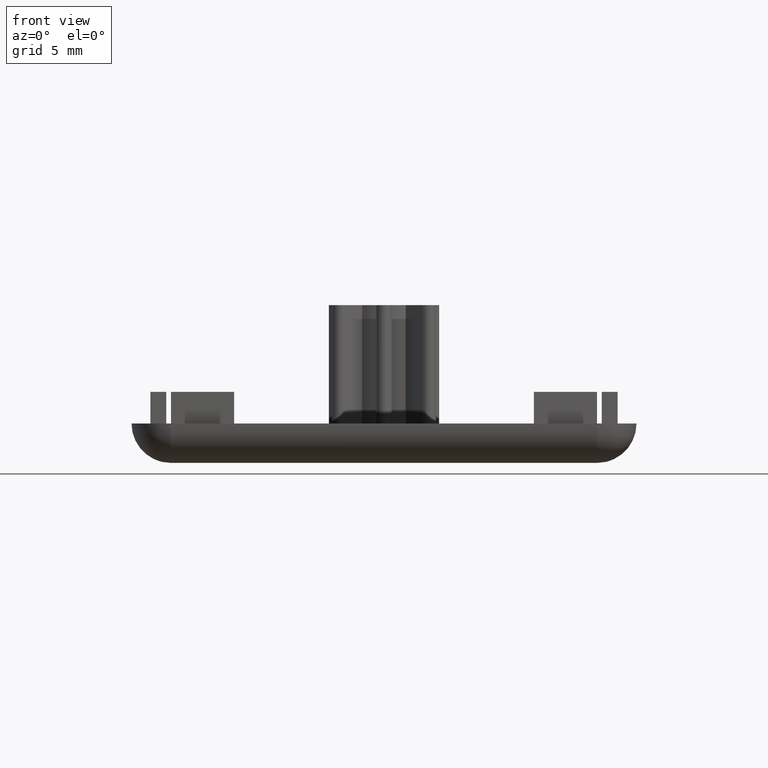
[diagram: clean part render]
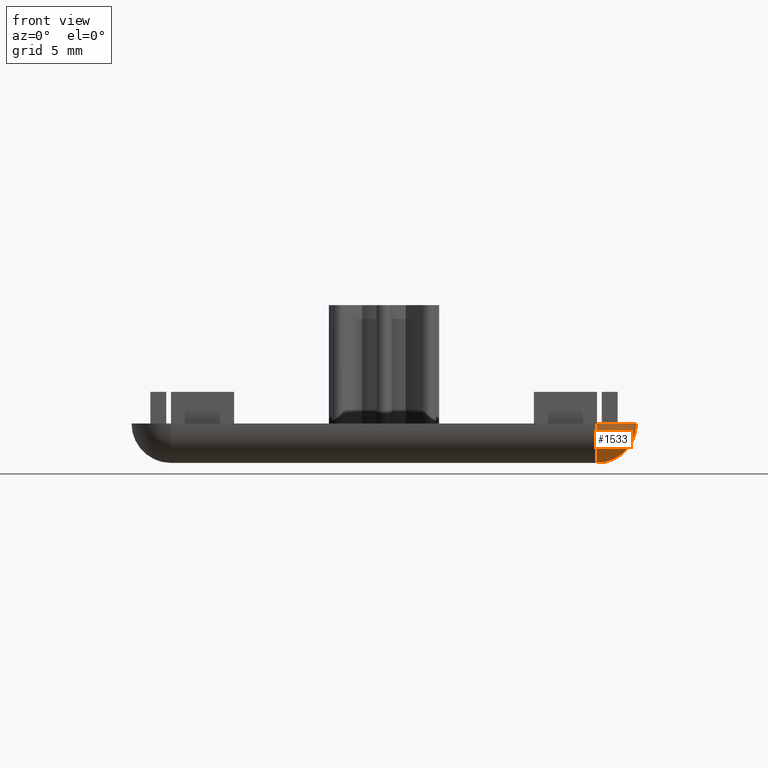
[diagram: same view with one face highlighted and labeled with its STEP entity id]
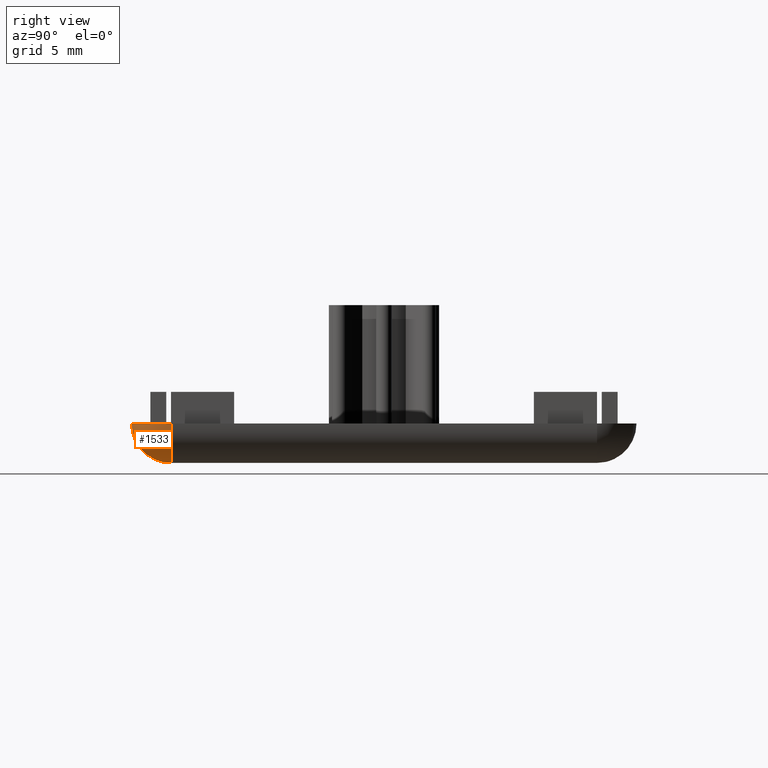
[diagram: same view with one face highlighted and labeled with its STEP entity id]
A machine part, front view. The second image highlights one B-rep face of the part: STEP entity #1533.
A second angle (right view) of the same face is appended — the face is thin or edge-on in the first view.
In plain terms, the highlighted spherical surface has radius 2.5 mm.
Its self-contained STEP definition (entity closure, byte-faithful):
#15=SPHERICAL_SURFACE('',#1658,2.5);
#501=FACE_OUTER_BOUND('',#597,.T.);
#597=EDGE_LOOP('',(#1404,#1405,#1406));
#641=CIRCLE('',#1614,2.5);
#645=CIRCLE('',#1659,2.5);
#646=CIRCLE('',#1660,2.5);
#719=VERTEX_POINT('',#2308);
#720=VERTEX_POINT('',#2309);
#791=VERTEX_POINT('',#2525);
#893=EDGE_CURVE('',#719,#720,#641,.T.);
#997=EDGE_CURVE('',#720,#791,#645,.T.);
#998=EDGE_CURVE('',#791,#719,#646,.T.);
#1404=ORIENTED_EDGE('',*,*,#893,.T.);
#1405=ORIENTED_EDGE('',*,*,#997,.T.);
#1406=ORIENTED_EDGE('',*,*,#998,.T.);
#1533=ADVANCED_FACE('',(#501),#15,.T.);
#1614=AXIS2_PLACEMENT_3D('',#2310,#1880,#1881);
#1658=AXIS2_PLACEMENT_3D('',#2524,#2068,#2069);
#1659=AXIS2_PLACEMENT_3D('',#2526,#2070,#2071);
#1660=AXIS2_PLACEMENT_3D('',#2527,#2072,#2073);
#1880=DIRECTION('center_axis',(0.,0.,-1.));
#1881=DIRECTION('ref_axis',(0.,1.,0.));
#2068=DIRECTION('center_axis',(0.,0.,1.));
#2069=DIRECTION('ref_axis',(1.,0.,0.));
#2070=DIRECTION('center_axis',(1.,6.93889390390723E-17,0.));
#2071=DIRECTION('ref_axis',(0.,-0.707106781186547,-0.707106781186548));
#2072=DIRECTION('center_axis',(6.93889390390723E-17,-1.,0.));
#2073=DIRECTION('ref_axis',(0.707106781186547,0.,-0.707106781186548));
#2308=CARTESIAN_POINT('',(5.30097127163295,-10.9951458028759,2.5));
#2309=CARTESIAN_POINT('',(2.80097127163295,-13.4951458028759,2.5));
#2310=CARTESIAN_POINT('Origin',(2.80097127163295,-10.9951458028759,2.5));
#2524=CARTESIAN_POINT('Origin',(2.80097127163295,-10.9951458028759,2.5));
#2525=CARTESIAN_POINT('',(2.80097127163295,-10.9951458028759,0.));
#2526=CARTESIAN_POINT('Origin',(2.80097127163295,-10.9951458028759,2.5));
#2527=CARTESIAN_POINT('Origin',(2.80097127163295,-10.9951458028759,2.5));